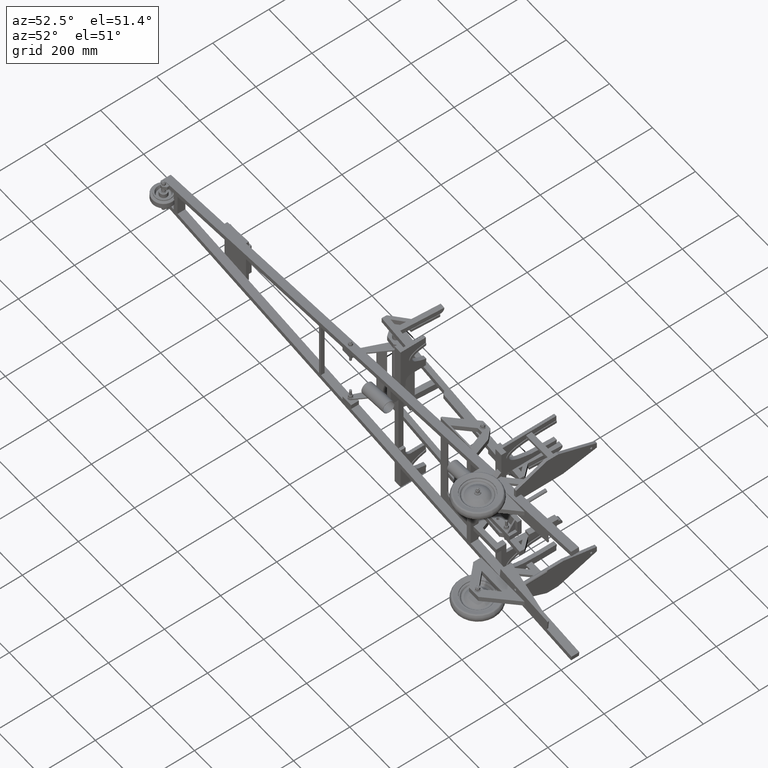
[diagram: clean part render]
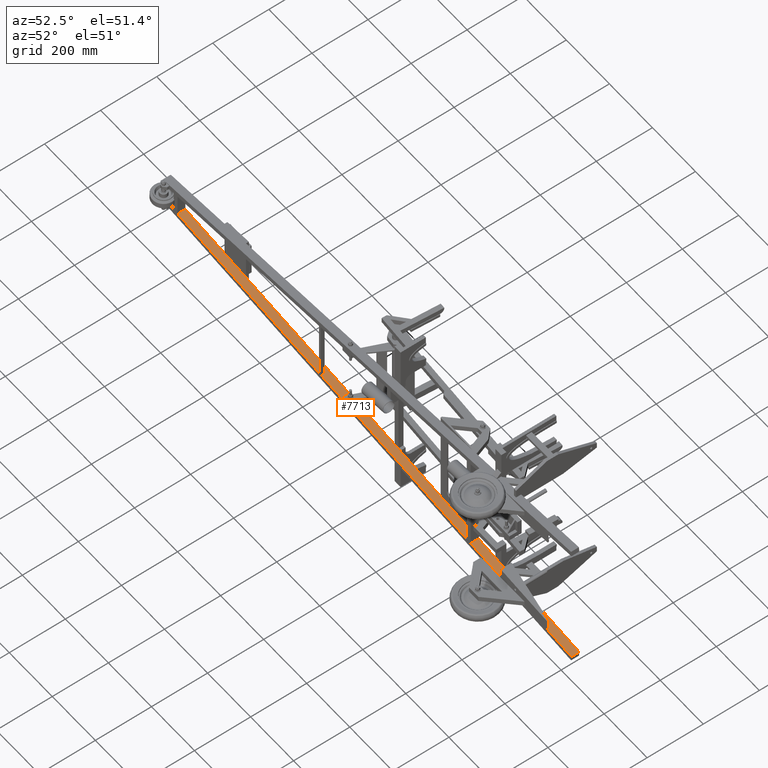
[diagram: same view with one face highlighted and labeled with its STEP entity id]
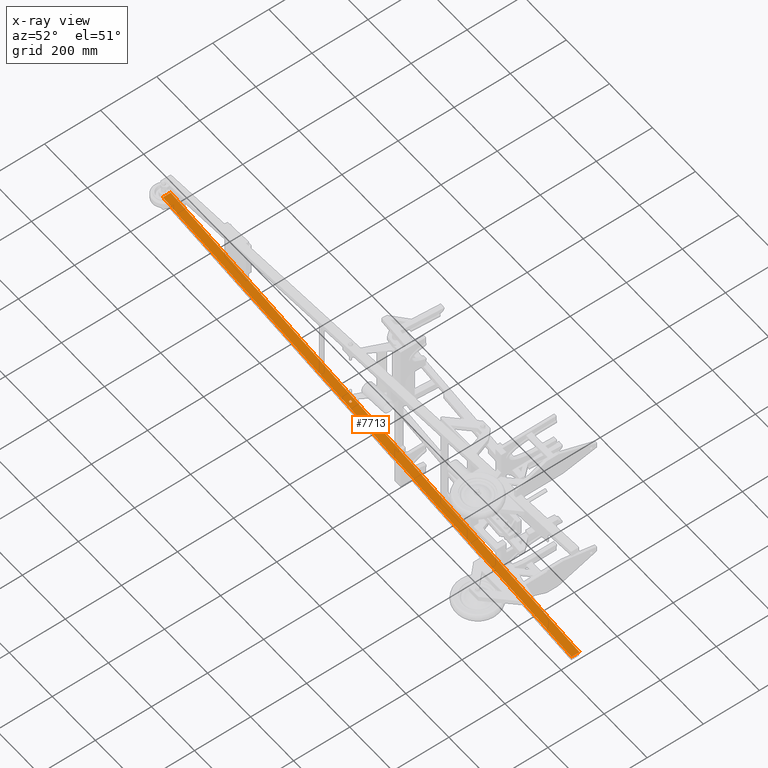
[diagram: x-ray of the same camera — body ghosted, the highlighted face saturated]
A machine part, auxiliary view. The second image highlights one B-rep face of the part: STEP entity #7713.
The next image is the same camera in x-ray: the body ghosted, the highlighted face saturated — about 0% of this face is hidden behind the body in this view.
In plain terms, the highlighted planar face has unit normal (-0.1027, 0, -0.9947).
Its self-contained STEP definition (entity closure, byte-faithful):
#916 = EDGE_CURVE ( 'NONE', #7369, #7368, #1765, .T. ) ;
#933 = EDGE_CURVE ( 'NONE', #7384, #7382, #4996, .T. ) ;
#939 = EDGE_CURVE ( 'NONE', #7382, #7389, #5001, .T. ) ;
#945 = EDGE_CURVE ( 'NONE', #7393, #7384, #5020, .T. ) ;
#947 = EDGE_CURVE ( 'NONE', #7394, #7396, #5009, .T. ) ;
#950 = EDGE_CURVE ( 'NONE', #7400, #7401, #5030, .T. ) ;
#955 = EDGE_CURVE ( 'NONE', #7389, #7394, #5034, .T. ) ;
#956 = EDGE_CURVE ( 'NONE', #7368, #7369, #1761, .T. ) ;
#957 = EDGE_CURVE ( 'NONE', #7393, #7400, #5025, .T. ) ;
#959 = EDGE_CURVE ( 'NONE', #7401, #7396, #5044, .T. ) ;
#1761 =( BOUNDED_CURVE ( )  B_SPLINE_CURVE ( 3, ( #4161, #4163, #4164, #4165 ),
 .UNSPECIFIED., .F., .F. ) 
 B_SPLINE_CURVE_WITH_KNOTS ( ( 4, 4 ),
 ( 0.0000000000000000000, 3.141592653589793100 ),
 .UNSPECIFIED. ) 
 CURVE ( )  GEOMETRIC_REPRESENTATION_ITEM ( )  RATIONAL_B_SPLINE_CURVE ( ( 1.000000000000000000, 0.3333333333333333700, 0.3333333333333333700, 1.000000000000000000 ) ) 
 REPRESENTATION_ITEM ( '' )  );
#1765 =( BOUNDED_CURVE ( )  B_SPLINE_CURVE ( 3, ( #4072, #4077, #4078, #4079 ),
 .UNSPECIFIED., .F., .T. ) 
 B_SPLINE_CURVE_WITH_KNOTS ( ( 4, 4 ),
 ( 3.141592653589793100, 6.283185307179586200 ),
 .UNSPECIFIED. ) 
 CURVE ( )  GEOMETRIC_REPRESENTATION_ITEM ( )  RATIONAL_B_SPLINE_CURVE ( ( 1.000000000000000000, 0.3333333333333333700, 0.3333333333333333700, 1.000000000000000000 ) ) 
 REPRESENTATION_ITEM ( '' )  );
#4072 = CARTESIAN_POINT ( 'NONE',  ( 807.4539503963831100, 14.00000000000000000, -120.4315390185975200 ) ) ;
#4077 = CARTESIAN_POINT ( 'NONE',  ( 807.4539503963832200, 6.000000000000017800, -120.4315390185975600 ) ) ;
#4078 = CARTESIAN_POINT ( 'NONE',  ( 799.4539503963831100, 6.000000000000017800, -119.6055847466945700 ) ) ;
#4079 = CARTESIAN_POINT ( 'NONE',  ( 799.4539503963831100, 14.00000000000000000, -119.6055847466945600 ) ) ;
#4115 = CARTESIAN_POINT ( 'NONE',  ( 1550.000000000000000, 28.00000000000000000, -197.0951742379460300 ) ) ;
#4116 = DIRECTION ( 'NONE',  ( 0.9947125423363353300, -0.0000000000000000000, -0.1026983842072710400 ) ) ;
#4125 = CARTESIAN_POINT ( 'NONE',  ( 1550.000000000000000, 28.00000000000000000, -197.0951742379460300 ) ) ;
#4128 = DIRECTION ( 'NONE',  ( 0.9947125423363353300, -0.0000000000000000000, -0.1026983842072710400 ) ) ;
#4135 = CARTESIAN_POINT ( 'NONE',  ( 1550.000000000000000, 28.00000000000000000, -197.0951742379460300 ) ) ;
#4139 = CARTESIAN_POINT ( 'NONE',  ( 1550.000000000000000, 28.00000000000000000, -197.0951742379460300 ) ) ;
#4140 = DIRECTION ( 'NONE',  ( 0.9947125423363353300, -0.0000000000000000000, -0.1026983842072710400 ) ) ;
#4144 = DIRECTION ( 'NONE',  ( 0.9947125423363353300, -0.0000000000000000000, -0.1026983842072710400 ) ) ;
#4149 = CARTESIAN_POINT ( 'NONE',  ( 1550.000000000000000, 0.0000000000000000000, -197.0951742379460300 ) ) ;
#4150 = DIRECTION ( 'NONE',  ( 0.9947125423363353300, -0.0000000000000000000, -0.1026983842072710400 ) ) ;
#4156 = CARTESIAN_POINT ( 'NONE',  ( 1550.000000000000000, 28.00000000000000000, -197.0951742379460300 ) ) ;
#4161 = CARTESIAN_POINT ( 'NONE',  ( 799.4539503963831100, 14.00000000000000000, -119.6055847466945600 ) ) ;
#4162 = DIRECTION ( 'NONE',  ( 0.9947125423363353300, -0.0000000000000000000, -0.1026983842072710400 ) ) ;
#4163 = CARTESIAN_POINT ( 'NONE',  ( 799.4539503963831100, 21.99999999999998600, -119.6055847466945700 ) ) ;
#4164 = CARTESIAN_POINT ( 'NONE',  ( 807.4539503963832200, 21.99999999999998600, -120.4315390185975600 ) ) ;
#4165 = CARTESIAN_POINT ( 'NONE',  ( 807.4539503963831100, 14.00000000000000000, -120.4315390185975200 ) ) ;
#4167 = CARTESIAN_POINT ( 'NONE',  ( -50.00000000000004300, 28.00000000000000000, -31.90431985735037300 ) ) ;
#4168 = DIRECTION ( 'NONE',  ( -0.0000000000000000000, -1.000000000000000000, -0.0000000000000000000 ) ) ;
#4171 = CARTESIAN_POINT ( 'NONE',  ( 1848.413762700900400, -304.1883561386446800, -227.9046895001292500 ) ) ;
#4172 = DIRECTION ( 'NONE',  ( 0.0000000000000000000, 1.000000000000000000, 0.0000000000000000000 ) ) ;
#4996 = LINE ( 'NONE', #4115, #4997 ) ;
#4997 = VECTOR ( 'NONE', #4116, 1000.000000000000100 ) ;
#5001 = LINE ( 'NONE', #4125, #5008 ) ;
#5008 = VECTOR ( 'NONE', #4128, 1000.000000000000100 ) ;
#5009 = LINE ( 'NONE', #4135, #5024 ) ;
#5020 = LINE ( 'NONE', #4139, #5021 ) ;
#5021 = VECTOR ( 'NONE', #4140, 1000.000000000000100 ) ;
#5024 = VECTOR ( 'NONE', #4144, 1000.000000000000100 ) ;
#5025 = LINE ( 'NONE', #4167, #5041 ) ;
#5030 = LINE ( 'NONE', #4149, #5031 ) ;
#5031 = VECTOR ( 'NONE', #4150, 1000.000000000000100 ) ;
#5034 = LINE ( 'NONE', #4156, #5038 ) ;
#5038 = VECTOR ( 'NONE', #4162, 1000.000000000000100 ) ;
#5041 = VECTOR ( 'NONE', #4168, 1000.000000000000000 ) ;
#5044 = LINE ( 'NONE', #4171, #5045 ) ;
#5045 = VECTOR ( 'NONE', #4172, 1000.000000000000000 ) ;
#7368 = VERTEX_POINT ( 'NONE', #24427 ) ;
#7369 = VERTEX_POINT ( 'NONE', #24428 ) ;
#7382 = VERTEX_POINT ( 'NONE', #24441 ) ;
#7384 = VERTEX_POINT ( 'NONE', #24443 ) ;
#7389 = VERTEX_POINT ( 'NONE', #24448 ) ;
#7393 = VERTEX_POINT ( 'NONE', #24452 ) ;
#7394 = VERTEX_POINT ( 'NONE', #24453 ) ;
#7396 = VERTEX_POINT ( 'NONE', #24455 ) ;
#7400 = VERTEX_POINT ( 'NONE', #24459 ) ;
#7401 = VERTEX_POINT ( 'NONE', #24460 ) ;
#7713 = ADVANCED_FACE ( 'NONE', ( #25367, #25369 ), #26178, .F. ) ;
#8731 = EDGE_LOOP ( 'NONE', ( #9270, #9271 ) ) ;
#8746 = EDGE_LOOP ( 'NONE', ( #9272, #9273, #9274, #9275, #9276, #9277, #9278, #9279 ) ) ;
#9270 = ORIENTED_EDGE ( 'NONE', *, *, #916, .T. ) ;
#9271 = ORIENTED_EDGE ( 'NONE', *, *, #956, .T. ) ;
#9272 = ORIENTED_EDGE ( 'NONE', *, *, #950, .T. ) ;
#9273 = ORIENTED_EDGE ( 'NONE', *, *, #959, .T. ) ;
#9274 = ORIENTED_EDGE ( 'NONE', *, *, #947, .F. ) ;
#9275 = ORIENTED_EDGE ( 'NONE', *, *, #955, .F. ) ;
#9276 = ORIENTED_EDGE ( 'NONE', *, *, #939, .F. ) ;
#9277 = ORIENTED_EDGE ( 'NONE', *, *, #933, .F. ) ;
#9278 = ORIENTED_EDGE ( 'NONE', *, *, #945, .F. ) ;
#9279 = ORIENTED_EDGE ( 'NONE', *, *, #957, .T. ) ;
#24427 = CARTESIAN_POINT ( 'NONE',  ( 799.4539503963831100, 14.00000000000000000, -119.6055847466945600 ) ) ;
#24428 = CARTESIAN_POINT ( 'NONE',  ( 807.4539503963831100, 14.00000000000000000, -120.4315390185975200 ) ) ;
#24441 = CARTESIAN_POINT ( 'NONE',  ( 1008.169791968910500, 28.00000000000000000, -141.1543023667763100 ) ) ;
#24443 = CARTESIAN_POINT ( 'NONE',  ( 990.1697919689108900, 28.00000000000000000, -139.2959052549946400 ) ) ;
#24448 = CARTESIAN_POINT ( 'NONE',  ( 1468.169791968910400, 28.00000000000000000, -188.6466730011975700 ) ) ;
#24452 = CARTESIAN_POINT ( 'NONE',  ( -50.00000000000004300, 28.00000000000000000, -31.90431985735037300 ) ) ;
#24453 = CARTESIAN_POINT ( 'NONE',  ( 1486.169791968910400, 28.00000000000000000, -190.5050701129792700 ) ) ;
#24455 = CARTESIAN_POINT ( 'NONE',  ( 1848.413762700900400, 28.00000000000000000, -227.9046895001292500 ) ) ;
#24459 = CARTESIAN_POINT ( 'NONE',  ( -50.00000000000004300, 0.0000000000000000000, -31.90431985735037300 ) ) ;
#24460 = CARTESIAN_POINT ( 'NONE',  ( 1848.413762700900400, 0.0000000000000000000, -227.9046895001292500 ) ) ;
#25367 = FACE_BOUND ( 'NONE', #8731, .T. ) ;
#25369 = FACE_OUTER_BOUND ( 'NONE', #8746, .T. ) ;
#25898 = AXIS2_PLACEMENT_3D ( 'NONE', #26179, #26184, #26185 ) ;
#26178 = PLANE ( 'NONE',  #25898 ) ;
#26179 = CARTESIAN_POINT ( 'NONE',  ( 1550.000000000000000, 28.00000000000000000, -197.0951742379460300 ) ) ;
#26184 = DIRECTION ( 'NONE',  ( -0.1026983842072710400, 0.0000000000000000000, -0.9947125423363353300 ) ) ;
#26185 = DIRECTION ( 'NONE',  ( -0.9947125423363353300, 0.0000000000000000000, 0.1026983842072710400 ) ) ;